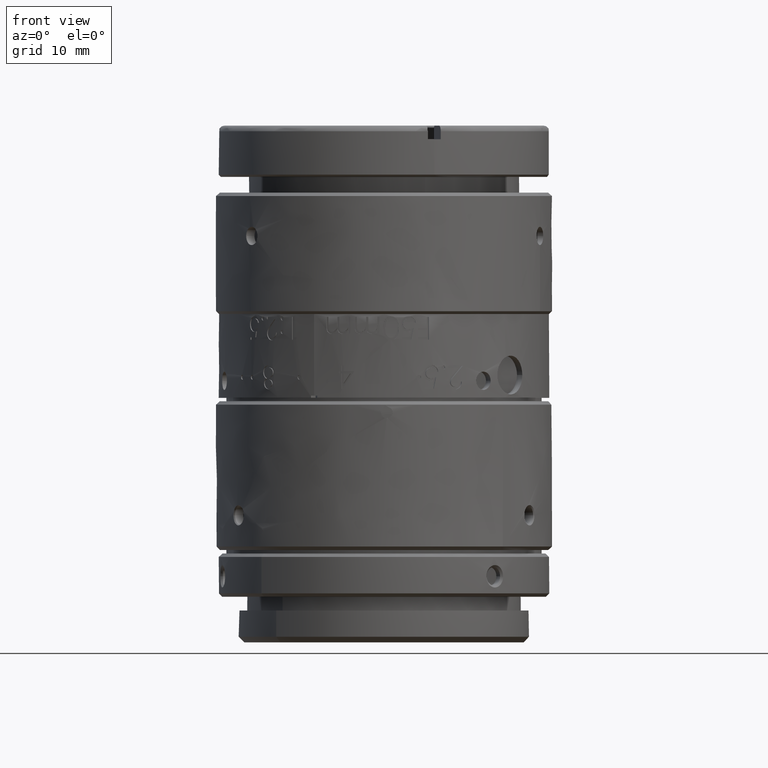
[diagram: clean part render]
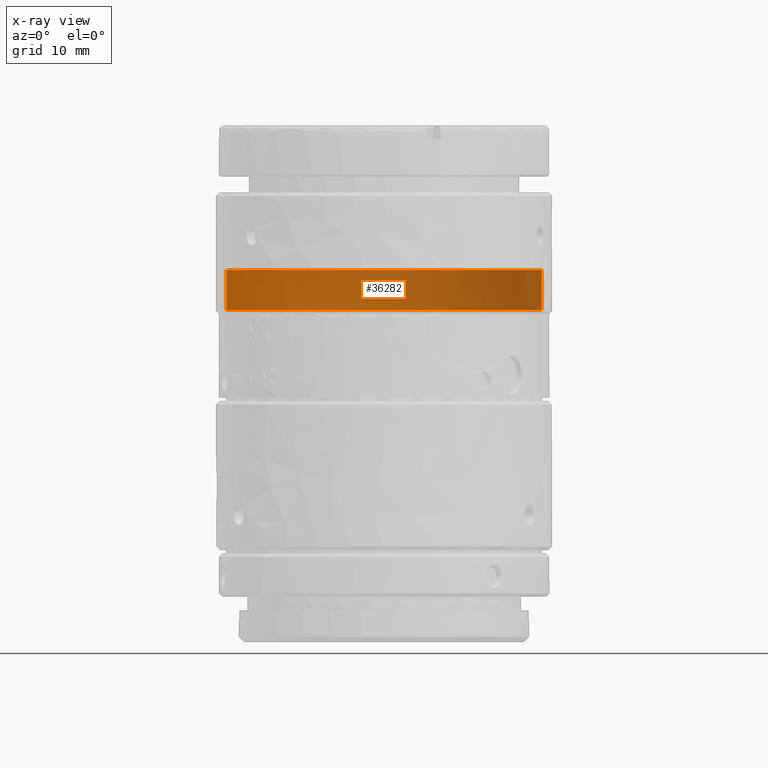
[diagram: x-ray — body ghosted, one internal face saturated and labeled with its STEP entity id]
A machine part, front view, then the same camera in x-ray: the body is ghosted and one INTERNAL B-rep face — a face not visible from any outside direction — is saturated and labeled: STEP entity #36282.
In plain terms, the highlighted face is a freeform B-spline surface patch.
Its self-contained STEP definition (entity closure, byte-faithful):
#1872 = FACE_OUTER_BOUND ( 'NONE', #33233, .T. ) ;
#2226 = CARTESIAN_POINT ( 'NONE',  ( 13.82029811845909961, -1.296664504594619778E-10, 8.315997008000000079 ) ) ;
#2464 = CARTESIAN_POINT ( 'NONE',  ( -13.82029812100000044, -5.669181055442177571E-09, 11.81599700800000008 ) ) ;
#5176 = CARTESIAN_POINT ( 'NONE',  ( 13.82029812100000044, 8.095743204558969452, 8.315997008000000079 ) ) ;
#7617 = ORIENTED_EDGE ( 'NONE', *, *, #12102, .T. ) ;
#7892 = CARTESIAN_POINT ( 'NONE',  ( 8.095743201724381777, 13.82029812266046775, 8.315997008000000079 ) ) ;
#9651 = VERTEX_POINT ( 'NONE', #16737 ) ;
#10220 = EDGE_CURVE ( 'NONE', #37794, #26286, #21394, .T. ) ;
#10708 =( BOUNDED_SURFACE ( )  B_SPLINE_SURFACE ( 1, 3, ( 
 ( #34272, #5176, #7892, #19725, #25541, #31345, #16629 ),
 ( #13715, #37378, #14114, #31152, #11016, #19525, #2464 ) ),
 .UNSPECIFIED., .F., .F., .T. ) 
 B_SPLINE_SURFACE_WITH_KNOTS ( ( 2, 2 ),
 ( 4, 3, 4 ),
 ( 0.0000000000000000000, 1.000000000000000000 ),
 ( 0.0000000000000000000, 0.5000000000000000000, 1.000000000000000000 ),
 .UNSPECIFIED. ) 
 GEOMETRIC_REPRESENTATION_ITEM ( )  RATIONAL_B_SPLINE_SURFACE ( (
 ( 1.000000000000000000, 0.8047378540760217192, 0.8047378540760217192, 1.000000000000000000, 0.8047378540760217192, 0.8047378540760217192, 1.000000000000000000),
 ( 1.000000000000000000, 0.8047378540760217192, 0.8047378540760217192, 1.000000000000000000, 0.8047378540760217192, 0.8047378540760217192, 1.000000000000000000) ) ) 
 REPRESENTATION_ITEM ( '' )  SURFACE ( )  );
#10908 = CARTESIAN_POINT ( 'NONE',  ( 13.82029812100000044, 8.095743204558965900, 8.315997008000000079 ) ) ;
#10959 = CARTESIAN_POINT ( 'NONE',  ( 13.82029812100000044, 8.095743204558965900, 11.81599700800000186 ) ) ;
#11016 = CARTESIAN_POINT ( 'NONE',  ( -8.095743207393560681, 13.82029811933953489, 11.81599700799999830 ) ) ;
#11542 = CARTESIAN_POINT ( 'NONE',  ( -2.834587458998452286E-09, 13.82029812099999866, 11.81599700800000186 ) ) ;
#12102 = EDGE_CURVE ( 'NONE', #38307, #37794, #29067, .T. ) ;
#12773 = B_SPLINE_CURVE_WITH_KNOTS ( 'NONE', 1,
 ( #32728, #23816 ),
 .UNSPECIFIED., .F., .F.,
 ( 2, 2 ),
 ( -1.000000000000000000, 0.0000000000000000000 ),
 .UNSPECIFIED. ) ;
#12978 =( BOUNDED_CURVE ( )  B_SPLINE_CURVE ( 3, ( #26262, #10959, #28789, #11542, #14055, #17545, #37706 ),
 .UNSPECIFIED., .F., .T. ) 
 B_SPLINE_CURVE_WITH_KNOTS ( ( 4, 3, 4 ),
 ( -3.141592653589795336, -1.570796326794897668, 0.0000000000000000000 ),
 .UNSPECIFIED. ) 
 CURVE ( )  GEOMETRIC_REPRESENTATION_ITEM ( )  RATIONAL_B_SPLINE_CURVE ( ( 1.000000000000000000, 0.8047378540760217192, 0.8047378540760217192, 1.000000000000000000, 0.8047378540760217192, 0.8047378540760217192, 1.000000000000000000 ) ) 
 REPRESENTATION_ITEM ( '' )  );
#13715 = CARTESIAN_POINT ( 'NONE',  ( 13.82029812100000044, 0.0000000000000000000, 11.81599700800000008 ) ) ;
#13801 = CARTESIAN_POINT ( 'NONE',  ( -13.82029812432092264, 8.095743198889792325, 8.315997007999996526 ) ) ;
#14055 = CARTESIAN_POINT ( 'NONE',  ( -8.095743207393553575, 13.82029811933953489, 11.81599700800000541 ) ) ;
#14114 = CARTESIAN_POINT ( 'NONE',  ( 8.095743201724381777, 13.82029812266046775, 11.81599700799999830 ) ) ;
#16629 = CARTESIAN_POINT ( 'NONE',  ( -13.82029812100000044, -5.669181055442177571E-09, 8.315997008000000079 ) ) ;
#16737 = CARTESIAN_POINT ( 'NONE',  ( -13.82029812338610064, -7.526866139811690527E-09, 11.81599700753331916 ) ) ;
#17308 = CARTESIAN_POINT ( 'NONE',  ( -2.834587458998452286E-09, 13.82029812099999866, 8.315997007999998303 ) ) ;
#17545 = CARTESIAN_POINT ( 'NONE',  ( -13.82029812432092264, 8.095743198889792325, 11.81599700800000541 ) ) ;
#19525 = CARTESIAN_POINT ( 'NONE',  ( -13.82029812432093152, 8.095743198889788772, 11.81599700799999830 ) ) ;
#19725 = CARTESIAN_POINT ( 'NONE',  ( -2.834590527721088785E-09, 13.82029812100000044, 8.315997008000000079 ) ) ;
#20025 = ORIENTED_EDGE ( 'NONE', *, *, #34440, .T. ) ;
#20431 = EDGE_CURVE ( 'NONE', #26286, #9651, #12978, .T. ) ;
#21394 = B_SPLINE_CURVE_WITH_KNOTS ( 'NONE', 1,
 ( #2226, #31305 ),
 .UNSPECIFIED., .F., .F.,
 ( 2, 2 ),
 ( -1.000000000000000000, 0.0000000000000000000 ),
 .UNSPECIFIED. ) ;
#22712 = CARTESIAN_POINT ( 'NONE',  ( 13.82029811845909961, -1.296664504594619778E-10, 8.315997008000000079 ) ) ;
#23266 = ORIENTED_EDGE ( 'NONE', *, *, #20431, .T. ) ;
#23816 = CARTESIAN_POINT ( 'NONE',  ( -13.82029812292953963, -2.311528140384084945E-09, 8.315997008000000079 ) ) ;
#25541 = CARTESIAN_POINT ( 'NONE',  ( -8.095743207393560681, 13.82029811933953489, 8.315997008000000079 ) ) ;
#25629 = CARTESIAN_POINT ( 'NONE',  ( -8.095743207393553575, 13.82029811933953489, 8.315997007999996526 ) ) ;
#26262 = CARTESIAN_POINT ( 'NONE',  ( 13.82029812495419918, 2.362574627404000135E-09, 11.81599700753331916 ) ) ;
#26286 = VERTEX_POINT ( 'NONE', #29396 ) ;
#27100 = ORIENTED_EDGE ( 'NONE', *, *, #10220, .T. ) ;
#28789 = CARTESIAN_POINT ( 'NONE',  ( 8.095743201724381777, 13.82029812266046065, 11.81599700800000186 ) ) ;
#29067 =( BOUNDED_CURVE ( )  B_SPLINE_CURVE ( 3, ( #34748, #13801, #25629, #17308, #37461, #10908, #22712 ),
 .UNSPECIFIED., .F., .T. ) 
 B_SPLINE_CURVE_WITH_KNOTS ( ( 4, 3, 4 ),
 ( -3.141592653589795336, -1.570796326794897668, 0.0000000000000000000 ),
 .UNSPECIFIED. ) 
 CURVE ( )  GEOMETRIC_REPRESENTATION_ITEM ( )  RATIONAL_B_SPLINE_CURVE ( ( 1.000000000000000000, 0.8047378540760217192, 0.8047378540760217192, 1.000000000000000000, 0.8047378540760217192, 0.8047378540760217192, 1.000000000000000000 ) ) 
 REPRESENTATION_ITEM ( '' )  );
#29396 = CARTESIAN_POINT ( 'NONE',  ( 13.82029812495419918, 2.362574627404000135E-09, 11.81599700753331916 ) ) ;
#30835 = CARTESIAN_POINT ( 'NONE',  ( 13.82029811845909961, -1.296664504594619778E-10, 8.315997008000000079 ) ) ;
#31152 = CARTESIAN_POINT ( 'NONE',  ( -2.834590527721088785E-09, 13.82029812100000044, 11.81599700800000008 ) ) ;
#31305 = CARTESIAN_POINT ( 'NONE',  ( 13.82029812495419918, 2.362574627404000135E-09, 11.81599700753331916 ) ) ;
#31345 = CARTESIAN_POINT ( 'NONE',  ( -13.82029812432093152, 8.095743198889788772, 8.315997008000000079 ) ) ;
#32234 = CARTESIAN_POINT ( 'NONE',  ( -13.82029812292953963, -2.311528140384084945E-09, 8.315997008000000079 ) ) ;
#32728 = CARTESIAN_POINT ( 'NONE',  ( -13.82029812338610064, -7.526866139811690527E-09, 11.81599700753331916 ) ) ;
#33233 = EDGE_LOOP ( 'NONE', ( #20025, #7617, #27100, #23266 ) ) ;
#34272 = CARTESIAN_POINT ( 'NONE',  ( 13.82029812100000044, 0.0000000000000000000, 8.315997008000000079 ) ) ;
#34440 = EDGE_CURVE ( 'NONE', #9651, #38307, #12773, .T. ) ;
#34748 = CARTESIAN_POINT ( 'NONE',  ( -13.82029812292953963, -2.311528140384084945E-09, 8.315997008000000079 ) ) ;
#36282 = ADVANCED_FACE ( 'NONE', ( #1872 ), #10708, .T. ) ;
#37378 = CARTESIAN_POINT ( 'NONE',  ( 13.82029812100000044, 8.095743204558969452, 11.81599700799999830 ) ) ;
#37461 = CARTESIAN_POINT ( 'NONE',  ( 8.095743201724381777, 13.82029812266046065, 8.315997008000000079 ) ) ;
#37706 = CARTESIAN_POINT ( 'NONE',  ( -13.82029812338610064, -7.526866139811690527E-09, 11.81599700753331916 ) ) ;
#37794 = VERTEX_POINT ( 'NONE', #30835 ) ;
#38307 = VERTEX_POINT ( 'NONE', #32234 ) ;